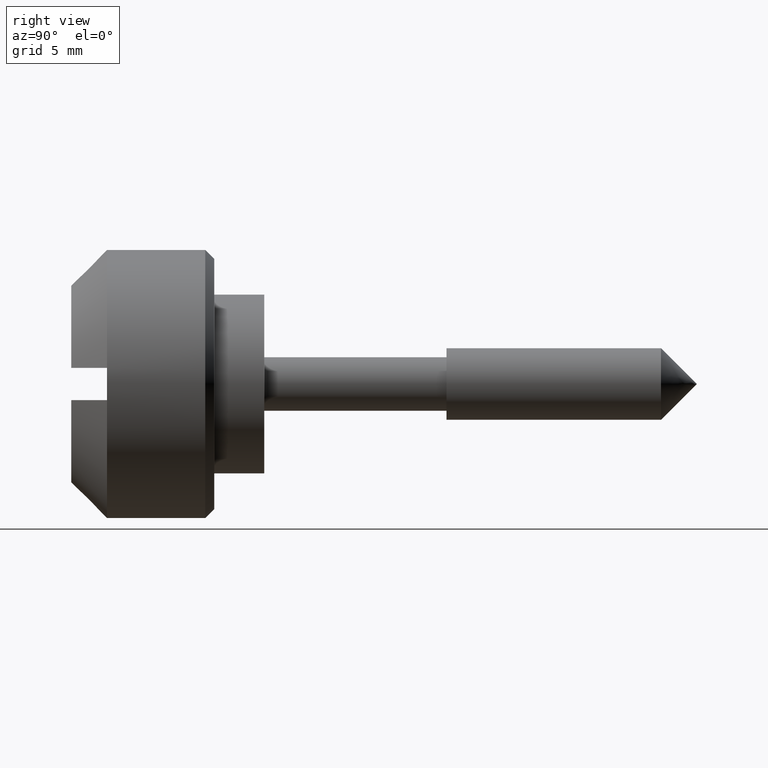
[diagram: clean part render]
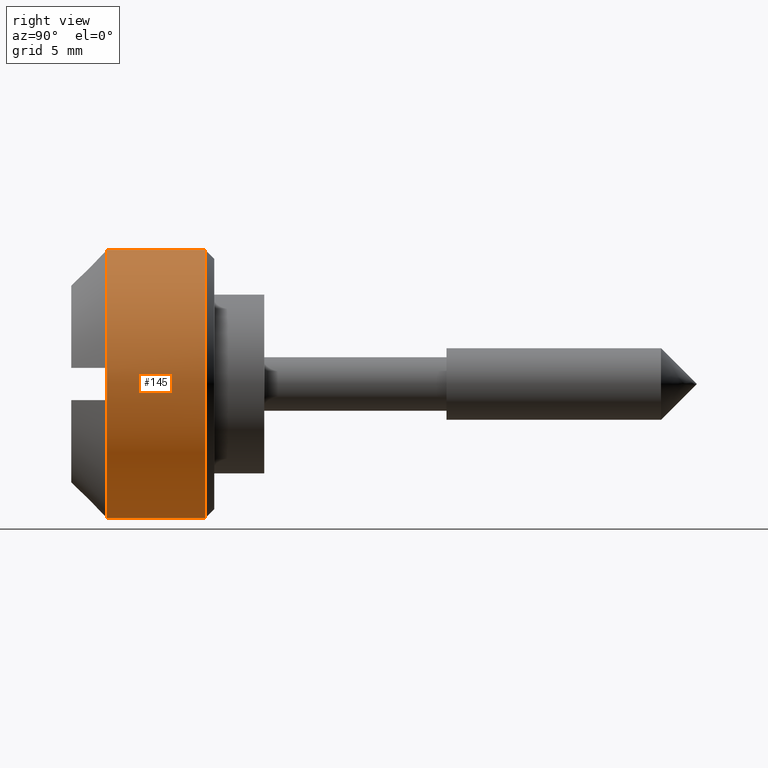
[diagram: same view with one face highlighted and labeled with its STEP entity id]
A machine part, right view. The second image highlights one B-rep face of the part: STEP entity #145.
In plain terms, the highlighted cylindrical surface (partial cylindrical patch) has radius 7.5 mm, axis along (0, -1, -0).
Its self-contained STEP definition (entity closure, byte-faithful):
#145=ADVANCED_FACE('',(#486),#485,.T.);
#485=CYLINDRICAL_SURFACE('',#732,7.50000000000E+00);
#486=FACE_OUTER_BOUND('',#733,.T.);
#729=CARTESIAN_POINT('',(-1.00200000000E+03,0.00000000000E+00,0.00000000000E+00));
#730=DIRECTION('',(-1.00000000000E+00,-0.00000000000E+00,-0.00000000000E+00));
#731=DIRECTION('',(-0.00000000000E+00,-0.00000000000E+00,1.00000000000E+00));
#732=AXIS2_PLACEMENT_3D('',#729,#730,#731);
#733=EDGE_LOOP('',(#918,#919,#920,#921,#922,#923));
#918=ORIENTED_EDGE('',*,*,#1011,.T.);
#919=ORIENTED_EDGE('',*,*,#1016,.T.);
#920=ORIENTED_EDGE('',*,*,#1006,.F.);
#921=ORIENTED_EDGE('',*,*,#999,.T.);
#922=ORIENTED_EDGE('',*,*,#993,.F.);
#923=ORIENTED_EDGE('',*,*,#1017,.F.);
#993=EDGE_CURVE('',#1389,#1396,#1397,.T.);
#999=EDGE_CURVE('',#1422,#1396,#1435,.T.);
#1006=EDGE_CURVE('',#1422,#1481,#1482,.T.);
#1011=EDGE_CURVE('',#1495,#1494,#1514,.T.);
#1016=EDGE_CURVE('',#1494,#1481,#1544,.T.);
#1017=EDGE_CURVE('',#1495,#1389,#1550,.T.);
#1389=VERTEX_POINT('',#1822);
#1396=VERTEX_POINT('',#1827);
#1397=CIRCLE('',#1831,7.50000000000E+00);
#1422=VERTEX_POINT('',#1844);
#1435=CIRCLE('',#1855,7.50000000000E+00);
#1481=VERTEX_POINT('',#1884);
#1482=CIRCLE('',#1888,7.50000000000E+00);
#1494=VERTEX_POINT('',#1893);
#1495=VERTEX_POINT('',#1894);
#1514=CIRCLE('',#1906,7.50000000000E+00);
#1544=(BOUNDED_CURVE() B_SPLINE_CURVE(1,(#1915,#1916),.UNSPECIFIED.,.F.,.F.) B_SPLINE_CURVE_WITH_KNOTS((2,2),(8.33333283663E-02,9.16666668285E-01),.UNSPECIFIED.) CURVE() GEOMETRIC_REPRESENTATION_ITEM() RATIONAL_B_SPLINE_CURVE((1.00000000000E+00,1.00000000000E+00)) REPRESENTATION_ITEM('') );
#1550=(BOUNDED_CURVE() B_SPLINE_CURVE(1,(#1917,#1918),.UNSPECIFIED.,.F.,.F.) B_SPLINE_CURVE_WITH_KNOTS((2,2),(8.33333333333E-02,9.16666666667E-01),.UNSPECIFIED.) CURVE() GEOMETRIC_REPRESENTATION_ITEM() RATIONAL_B_SPLINE_CURVE((7.50000000000E-01,7.50000000000E-01)) REPRESENTATION_ITEM('') );
#1822=CARTESIAN_POINT('',(-7.99990000000E+00,-1.86247738299E-06,-7.50000000000E+00));
#1827=CARTESIAN_POINT('',(-7.99990000000E+00,-7.44580418759E+00,-9.00000000000E-01));
#1828=CARTESIAN_POINT('',(-7.99990000000E+00,0.00000000000E+00,0.00000000000E+00));
#1829=DIRECTION('',(-1.00000000000E+00,0.00000000000E+00,0.00000000000E+00));
#1830=DIRECTION('',(-0.00000000000E+00,9.92773891679E-01,-1.20000000000E-01));
#1831=AXIS2_PLACEMENT_3D('',#1828,#1829,#1830);
#1844=CARTESIAN_POINT('',(-7.99990000000E+00,-7.44580418759E+00,9.00000000000E-01));
#1852=CARTESIAN_POINT('',(-7.99990000000E+00,0.00000000000E+00,0.00000000000E+00));
#1853=DIRECTION('',(1.00000000000E+00,0.00000000000E+00,-0.00000000000E+00));
#1854=DIRECTION('',(-0.00000000000E+00,-0.00000000000E+00,-1.00000000000E+00));
#1855=AXIS2_PLACEMENT_3D('',#1852,#1853,#1854);
#1884=CARTESIAN_POINT('',(-7.99990000000E+00,-3.78800271254E-10,7.50000000000E+00));
#1885=CARTESIAN_POINT('',(-7.99990000000E+00,0.00000000000E+00,0.00000000000E+00));
#1886=DIRECTION('',(-1.00000000000E+00,0.00000000000E+00,0.00000000000E+00));
#1887=DIRECTION('',(-0.00000000000E+00,-0.00000000000E+00,-1.00000000000E+00));
#1888=AXIS2_PLACEMENT_3D('',#1885,#1886,#1887);
#1893=CARTESIAN_POINT('',(-2.50000000000E+00,1.77635683940E-15,7.50000000000E+00));
#1894=CARTESIAN_POINT('',(-2.50000000000E+00,0.00000000000E+00,-7.50000000000E+00));
#1903=CARTESIAN_POINT('',(-2.50000000000E+00,0.00000000000E+00,0.00000000000E+00));
#1904=DIRECTION('',(-1.00000000000E+00,0.00000000000E+00,-0.00000000000E+00));
#1905=DIRECTION('',(0.00000000000E+00,-1.22460635382E-16,-1.00000000000E+00));
#1906=AXIS2_PLACEMENT_3D('',#1903,#1904,#1905);
#1915=CARTESIAN_POINT('',(-2.49999996722E+00,0.00000000000E+00,7.50000000000E+00));
#1916=CARTESIAN_POINT('',(-7.99990001068E+00,0.00000000000E+00,7.50000000000E+00));
#1917=CARTESIAN_POINT('',(-2.50000000000E+00,-2.96059473233E-16,-7.50000000000E+00));
#1918=CARTESIAN_POINT('',(-7.99990000000E+00,-2.96059473233E-16,-7.50000000000E+00));